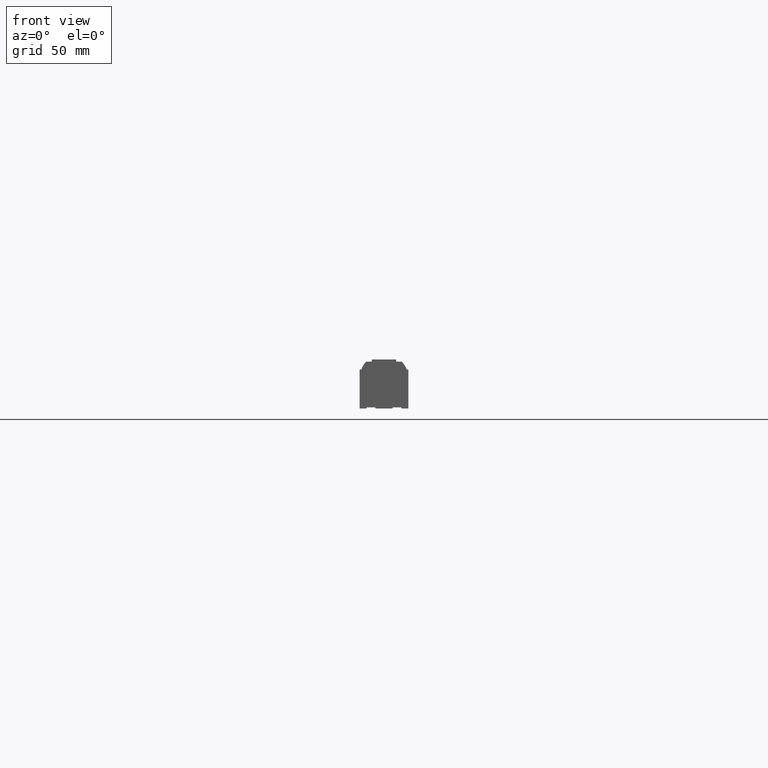
[diagram: clean part render]
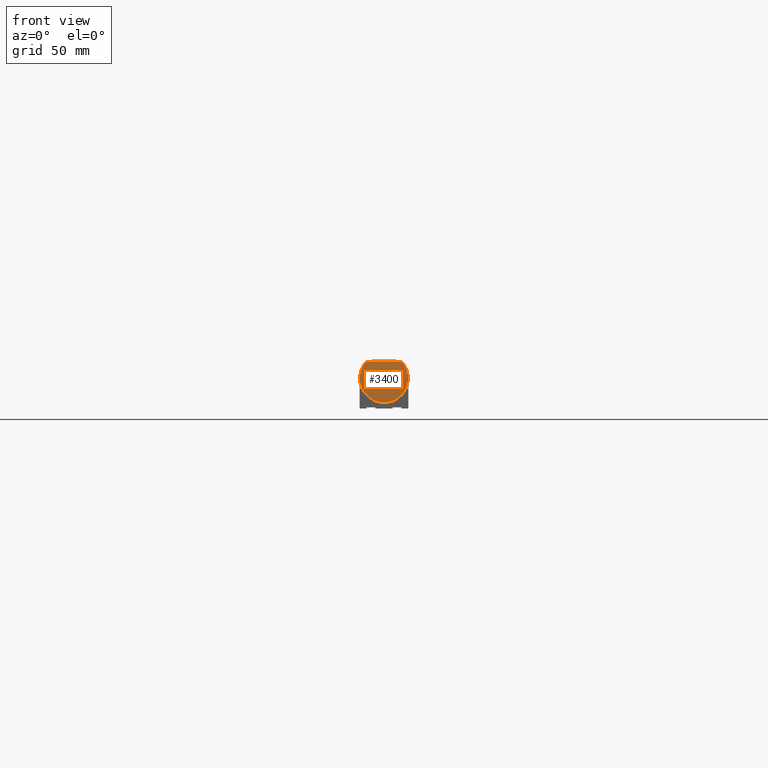
[diagram: same view with one face highlighted and labeled with its STEP entity id]
A machine part, front view. The second image highlights one B-rep face of the part: STEP entity #3400.
In plain terms, the highlighted planar face has unit normal (0, 1, 0).
Its self-contained STEP definition (entity closure, byte-faithful):
#3160=CARTESIAN_POINT('',(1.73472347597681E-15,0.,-16.1773651947847));
#3170=DIRECTION('',(1.,-0.,0.));
#3180=DIRECTION('',(0.,0.,-1.));
#3190=AXIS2_PLACEMENT_3D('',#3160,#3170,#3180);
#3200=PLANE('',#3190);
#3210=CARTESIAN_POINT('',(1.77635683940025E-15,-8.2900498159624,
-25.6039554467767));
#3220=DIRECTION('',(0.,1.,-1.49993041680634E-15));
#3230=VECTOR('',#3220,1.);
#3240=LINE('',#3210,#3230);
#3250=CARTESIAN_POINT('',(1.77635683940025E-15,-8.29004981596239,
-25.6039554467767));
#3260=VERTEX_POINT('',#3250);
#3270=CARTESIAN_POINT('',(1.73472347597681E-15,8.29004981596238,
-25.6039554467767));
#3280=VERTEX_POINT('',#3270);
#3290=EDGE_CURVE('',#3260,#3280,#3240,.T.);
#3300=ORIENTED_EDGE('',*,*,#3290,.F.);
#3310=CARTESIAN_POINT('',(1.95399252334028E-14,0.,-18.));
#3320=DIRECTION('',(-1.,0.,0.));
#3330=DIRECTION('',(0.,-0.736944080485875,-0.675953713087537));
#3340=AXIS2_PLACEMENT_3D('',#3310,#3320,#3330);
#3350=CIRCLE('',#3340,11.2492250572074);
#3360=EDGE_CURVE('',#3260,#3280,#3350,.T.);
#3370=ORIENTED_EDGE('',*,*,#3360,.T.);
#3380=EDGE_LOOP('',(#3370,#3300));
#3390=FACE_OUTER_BOUND('',#3380,.T.);
#3400=ADVANCED_FACE('',(#3390),#3200,.F.);